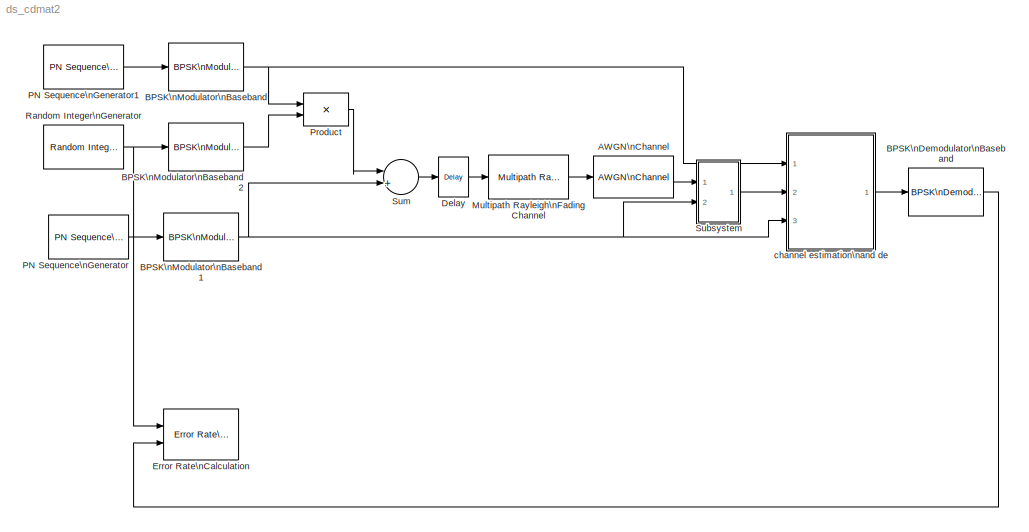
MODEL ds_cdmat2
KIND model
CONFIG AbsTol = auto
CONFIG FixedStep = auto
CONFIG MaxStep = auto
CONFIG MinStep = auto
CONFIG RelTol = 1e-3
CONFIG Solver = ode45
CONFIG SolverMode = Auto
CONFIG StartTime = 0.0
CONFIG StopTime = 3
BLOCK [Reference] AWGN\nChannel  REF=commchan2/AWGN\nChannel
  EsNodB = 3
  Ports = [1, 1]
  Ps = 1
  SNRdB = snr(k)
  SourceBlock = commchan2/AWGN\nChannel
  SourceType = AWGN Channel
  Tsym = 1e-3/63
  noiseMode = Signal to noise ratio  (SNR)
  seed = 67
  variance = 1
BLOCK [Reference] BPSK\nDemodulator\nBaseband  REF=commdigbbndpm2/BPSK\nDemodulator\nBaseband
  Ph = 0
  Ports = [1, 1]
  SourceBlock = commdigbbndpm2/BPSK\nDemodulator\nBaseband
  SourceType = BPSK Demodulator Baseband
  numSamp = 1
BLOCK [Reference] BPSK\nModulator\nBaseband  REF=commdigbbndpm2/BPSK\nModulator\nBaseband
  Ph = 0
  Ports = [1, 1]
  SourceBlock = commdigbbndpm2/BPSK\nModulator\nBaseband
  SourceType = BPSK Modulator Baseband
  numSamp = 1
BLOCK [Reference] BPSK\nModulator\nBaseband1  REF=commdigbbndpm2/BPSK\nModulator\nBaseband
  Ph = 0
  Ports = [1, 1]
  SourceBlock = commdigbbndpm2/BPSK\nModulator\nBaseband
  SourceType = BPSK Modulator Baseband
  numSamp = 1
BLOCK [Reference] BPSK\nModulator\nBaseband2  REF=commdigbbndpm2/BPSK\nModulator\nBaseband
  Ph = 0
  Ports = [1, 1]
  SourceBlock = commdigbbndpm2/BPSK\nModulator\nBaseband
  SourceType = BPSK Modulator Baseband
  numSamp = 1
BLOCK [Reference] Delay  REF=dspsigops/Delay
  Ports = [1, 1]
  SourceBlock = dspsigops/Delay
  SourceType = Delay
  delay = 15
  dif_ic_for_ch = off
  dif_ic_for_dly = off
  dly_unit = Samples
  ic = 0
  ic_detail = off
  reset_popup = None
BLOCK [Reference] Error Rate\nCalculation  REF=commsink2/Error Rate\nCalculation
  N = 1
  PMode = Workspace
  Ports = [2]
  RsMode2 = off
  SourceBlock = commsink2/Error Rate\nCalculation
  SourceType = Error Rate Calculation
  WsName = ErrorVec
  cp_mode = Entire frame
  maxBits = 1e6
  numErr = 100
  st_delay = 0
  stop = off
  subframe = []
BLOCK [Reference] Multipath Rayleigh\nFading Channel  REF=commchan2/Multipath Rayleigh\nFading Channel
  Fd = 100
  Ports = [1, 1]
  Seed = 73
  SourceBlock = commchan2/Multipath Rayleigh\nFading Channel
  SourceType = Multipath Rayleigh Fading Channel
  delayVec = [0 6e-3/63 9e-3/63]
  gainVecdB = [0 -1 -2]
  normGain = off
  simTs = 1e-3/63
BLOCK [Reference] PN Sequence\nGenerator  REF=commseqgen2/PN Sequence\nGenerator
  Ports = [0, 1]
  SourceBlock = commseqgen2/PN Sequence\nGenerator
  SourceType = PN Sequence Generator
  Ts = 1e-3/63
  frameBased = on
  ini_sta = [0 0 0 0  0 1]
  poly = [1 1 0 0 1 1 1]
  reset = off
  sampPerFrame = 63
  shift = 0
BLOCK [Reference] PN Sequence\nGenerator1  REF=commseqgen2/PN Sequence\nGenerator
  Ports = [0, 1]
  SourceBlock = commseqgen2/PN Sequence\nGenerator
  SourceType = PN Sequence Generator
  Ts = 1e-3/63
  frameBased = on
  ini_sta = [0 0 0 0 0 1]
  poly = [1 0 0 0 0 1 1]
  reset = off
  sampPerFrame = 63
  shift = 0
BLOCK [Product] Product
  InputSameDT = off
  Ports = [2, 1]
BLOCK [Reference] Random Integer\nGenerator  REF=commrandsrc2/Random Integer\nGenerator
  Ports = [0, 1]
  SourceBlock = commrandsrc2/Random Integer\nGenerator
  SourceType = Random Integer Generator
  Ts = 1e-3
  frameBased = on
  mul = 2
  orient = off
  sampPerFrame = 1
  seed = 37
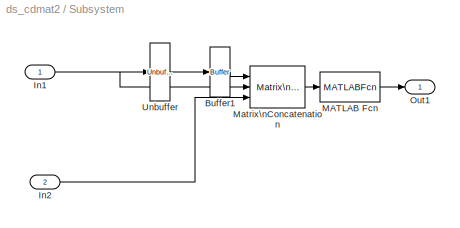
BLOCK [SubSystem] Subsystem
  Ports = [2, 1]
  TreatAsAtomicUnit = off
BLOCK [Reference] Subsystem/Buffer1  REF=dspbuff3/Buffer
  N = 63
  Ports = [1, 1]
  SourceBlock = dspbuff3/Buffer
  SourceType = Buffer
  V = 0
  ic = 0
BLOCK [Inport] Subsystem/In1
BLOCK [Inport] Subsystem/In2
  Port = 2
BLOCK [MATLABFcn] Subsystem/MATLAB Fcn
  MATLABFcn = DSsyn
  Output1D = off
BLOCK [Reference] Subsystem/Matrix\nConcatenation  REF=simulink/Math\nOperations/Matrix\nConcatenation
  Ports = [3, 1]
  SourceBlock = simulink/Math\nOperations/Matrix\nConcatenation
  SourceType = Matrix Concatenation
  catMethod = Vertical
  numInports = 3
BLOCK [Outport] Subsystem/Out1
BLOCK [Reference] Subsystem/Unbuffer  REF=dspbuff3/Unbuffer
  Ports = [1, 1]
  SourceBlock = dspbuff3/Unbuffer
  SourceType = Unbuffer
  ic = 0
BLOCK [Sum] Sum
  InputSameDT = off
  Inputs = |++
  OutDataTypeMode = Inherit via internal rule
  Ports = [2, 1]
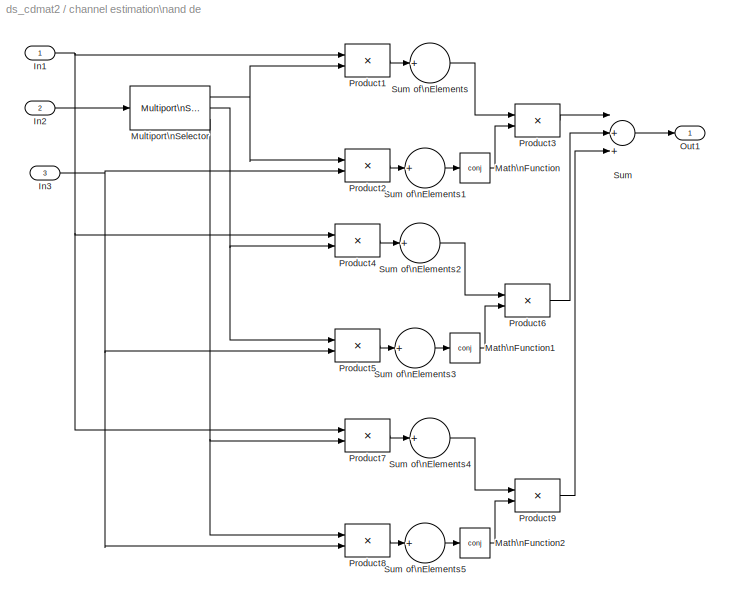
BLOCK [SubSystem] channel estimation\nand de
  MaskIconFrame = on
  MaskIconOpaque = on
  MaskIconRotate = none
  MaskIconUnits = autoscale
  Ports = [3, 1]
  TreatAsAtomicUnit = off
BLOCK [Inport] channel estimation\nand de/In1
BLOCK [Inport] channel estimation\nand de/In2
  Port = 2
BLOCK [Inport] channel estimation\nand de/In3
  Port = 3
BLOCK [Math] channel estimation\nand de/Math\nFunction
  Operator = conj
  Ports = [1, 1]
BLOCK [Math] channel estimation\nand de/Math\nFunction1
  Operator = conj
  Ports = [1, 1]
BLOCK [Math] channel estimation\nand de/Math\nFunction2
  Operator = conj
  Ports = [1, 1]
BLOCK [Reference] channel estimation\nand de/Multiport\nSelector  REF=dspindex/Multiport\nSelector
  Ports = [1, 3]
  SourceBlock = dspindex/Multiport\nSelector
  SourceType = Multiport Selector
  idxCellArray = {[1:63], [64:126],[127:189] }
  idxErrMode = Clip Index
  rowsOrCols = Rows
BLOCK [Outport] channel estimation\nand de/Out1
BLOCK [Product] channel estimation\nand de/Product1
  InputSameDT = off
  Ports = [2, 1]
BLOCK [Product] channel estimation\nand de/Product2
  InputSameDT = off
  Ports = [2, 1]
BLOCK [Product] channel estimation\nand de/Product3
  InputSameDT = off
  Ports = [2, 1]
BLOCK [Product] channel estimation\nand de/Product4
  InputSameDT = off
  Ports = [2, 1]
BLOCK [Product] channel estimation\nand de/Product5
  InputSameDT = off
  Ports = [2, 1]
BLOCK [Product] channel estimation\nand de/Product6
  InputSameDT = off
  Ports = [2, 1]
BLOCK [Product] channel estimation\nand de/Product7
  InputSameDT = off
  Ports = [2, 1]
BLOCK [Product] channel estimation\nand de/Product8
  InputSameDT = off
  Ports = [2, 1]
BLOCK [Product] channel estimation\nand de/Product9
  InputSameDT = off
  Ports = [2, 1]
BLOCK [Sum] channel estimation\nand de/Sum
  InputSameDT = off
  Inputs = |+++
  Ports = [3, 1]
  ShowAdditionalParam = on
BLOCK [Sum] channel estimation\nand de/Sum of\nElements
  InputSameDT = off
  Inputs = +
  OutScaling = 2^-10
  Ports = [1, 1]
  SaturateOnIntegerOverflow = off
  ShowAdditionalParam = on
BLOCK [Sum] channel estimation\nand de/Sum of\nElements1
  InputSameDT = off
  Inputs = +
  OutScaling = 2^-10
  Ports = [1, 1]
  SaturateOnIntegerOverflow = off
  ShowAdditionalParam = on
BLOCK [Sum] channel estimation\nand de/Sum of\nElements2
  InputSameDT = off
  Inputs = +
  OutScaling = 2^-10
  Ports = [1, 1]
  SaturateOnIntegerOverflow = off
  ShowAdditionalParam = on
BLOCK [Sum] channel estimation\nand de/Sum of\nElements3
  InputSameDT = off
  Inputs = +
  OutScaling = 2^-10
  Ports = [1, 1]
  SaturateOnIntegerOverflow = off
  ShowAdditionalParam = on
BLOCK [Sum] channel estimation\nand de/Sum of\nElements4
  InputSameDT = off
  Inputs = +
  OutScaling = 2^-10
  Ports = [1, 1]
  SaturateOnIntegerOverflow = off
  ShowAdditionalParam = on
BLOCK [Sum] channel estimation\nand de/Sum of\nElements5
  InputSameDT = off
  Inputs = +
  OutScaling = 2^-10
  Ports = [1, 1]
  SaturateOnIntegerOverflow = off
  ShowAdditionalParam = on
LINE AWGN\nChannel:1 -> Subsystem:1
LINE BPSK\nDemodulator\nBaseband:1 -> Error Rate\nCalculation:2
NET BPSK\nModulator\nBaseband1:1 -> Subsystem:2, Sum:2, channel estimation\nand de:3
LINE BPSK\nModulator\nBaseband2:1 -> Product:2
NET BPSK\nModulator\nBaseband:1 -> Product:1, channel estimation\nand de:1
LINE Delay:1 -> Multipath Rayleigh\nFading Channel:1
LINE Multipath Rayleigh\nFading Channel:1 -> AWGN\nChannel:1
LINE PN Sequence\nGenerator1:1 -> BPSK\nModulator\nBaseband:1
LINE PN Sequence\nGenerator:1 -> BPSK\nModulator\nBaseband1:1
LINE Product:1 -> Sum:1
NET Random Integer\nGenerator:1 -> BPSK\nModulator\nBaseband2:1, Error Rate\nCalculation:1
LINE Subsystem/Buffer1:1 -> Subsystem/Matrix\nConcatenation:1
NET Subsystem/In1:1 -> Subsystem/Matrix\nConcatenation:2, Subsystem/Unbuffer:1
LINE Subsystem/In2:1 -> Subsystem/Matrix\nConcatenation:3
LINE Subsystem/MATLAB Fcn:1 -> Subsystem/Out1:1
LINE Subsystem/Matrix\nConcatenation:1 -> Subsystem/MATLAB Fcn:1
LINE Subsystem/Unbuffer:1 -> Subsystem/Buffer1:1
LINE Subsystem:1 -> channel estimation\nand de:2
LINE Sum:1 -> Delay:1
NET channel estimation\nand de/In1:1 -> channel estimation\nand de/Product1:1, channel estimation\nand de/Product4:1, channel estimation\nand de/Product7:1
LINE channel estimation\nand de/In2:1 -> channel estimation\nand de/Multiport\nSelector:1
NET channel estimation\nand de/In3:1 -> channel estimation\nand de/Product2:2, channel estimation\nand de/Product5:2, channel estimation\nand de/Product8:2
LINE channel estimation\nand de/Math\nFunction1:1 -> channel estimation\nand de/Product6:2
LINE channel estimation\nand de/Math\nFunction2:1 -> channel estimation\nand de/Product9:2
LINE channel estimation\nand de/Math\nFunction:1 -> channel estimation\nand de/Product3:2
NET channel estimation\nand de/Multiport\nSelector:1 -> channel estimation\nand de/Product1:2, channel estimation\nand de/Product2:1
NET channel estimation\nand de/Multiport\nSelector:2 -> channel estimation\nand de/Product4:2, channel estimation\nand de/Product5:1
NET channel estimation\nand de/Multiport\nSelector:3 -> channel estimation\nand de/Product7:2, channel estimation\nand de/Product8:1
LINE channel estimation\nand de/Product1:1 -> channel estimation\nand de/Sum of\nElements:1
LINE channel estimation\nand de/Product2:1 -> channel estimation\nand de/Sum of\nElements1:1
LINE channel estimation\nand de/Product3:1 -> channel estimation\nand de/Sum:1
LINE channel estimation\nand de/Product4:1 -> channel estimation\nand de/Sum of\nElements2:1
LINE channel estimation\nand de/Product5:1 -> channel estimation\nand de/Sum of\nElements3:1
LINE channel estimation\nand de/Product6:1 -> channel estimation\nand de/Sum:2
LINE channel estimation\nand de/Product7:1 -> channel estimation\nand de/Sum of\nElements4:1
LINE channel estimation\nand de/Product8:1 -> channel estimation\nand de/Sum of\nElements5:1
LINE channel estimation\nand de/Product9:1 -> channel estimation\nand de/Sum:3
LINE channel estimation\nand de/Sum of\nElements1:1 -> channel estimation\nand de/Math\nFunction:1
LINE channel estimation\nand de/Sum of\nElements2:1 -> channel estimation\nand de/Product6:1
LINE channel estimation\nand de/Sum of\nElements3:1 -> channel estimation\nand de/Math\nFunction1:1
LINE channel estimation\nand de/Sum of\nElements4:1 -> channel estimation\nand de/Product9:1
LINE channel estimation\nand de/Sum of\nElements5:1 -> channel estimation\nand de/Math\nFunction2:1
LINE channel estimation\nand de/Sum of\nElements:1 -> channel estimation\nand de/Product3:1
LINE channel estimation\nand de/Sum:1 -> channel estimation\nand de/Out1:1
LINE channel estimation\nand de:1 -> BPSK\nDemodulator\nBaseband:1
note: NET lines group one-source signal fan-out (src -> all destinations, sorted); 1:1 wires keep LINE
